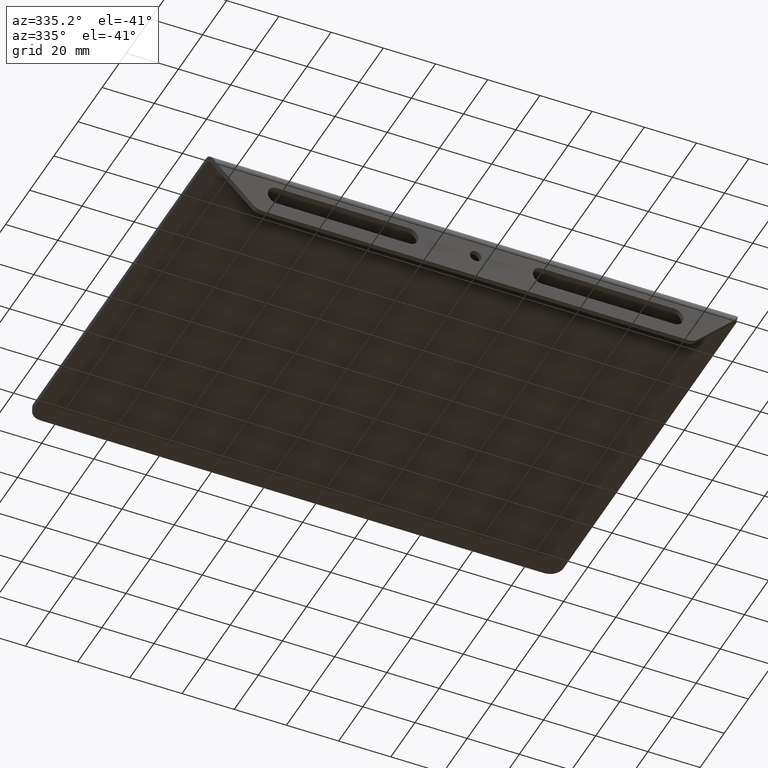
[diagram: clean part render]
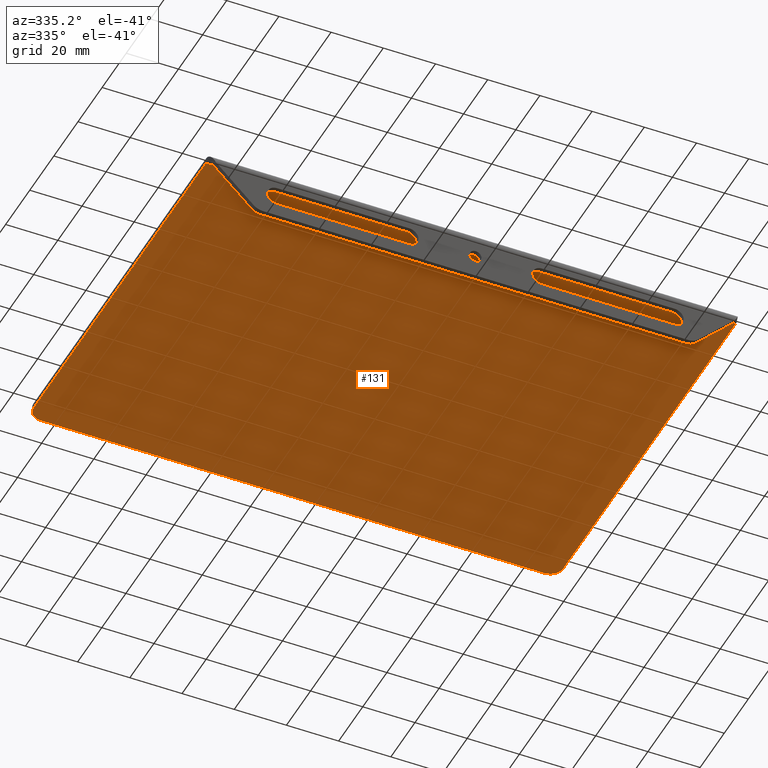
[diagram: same view with one face highlighted and labeled with its STEP entity id]
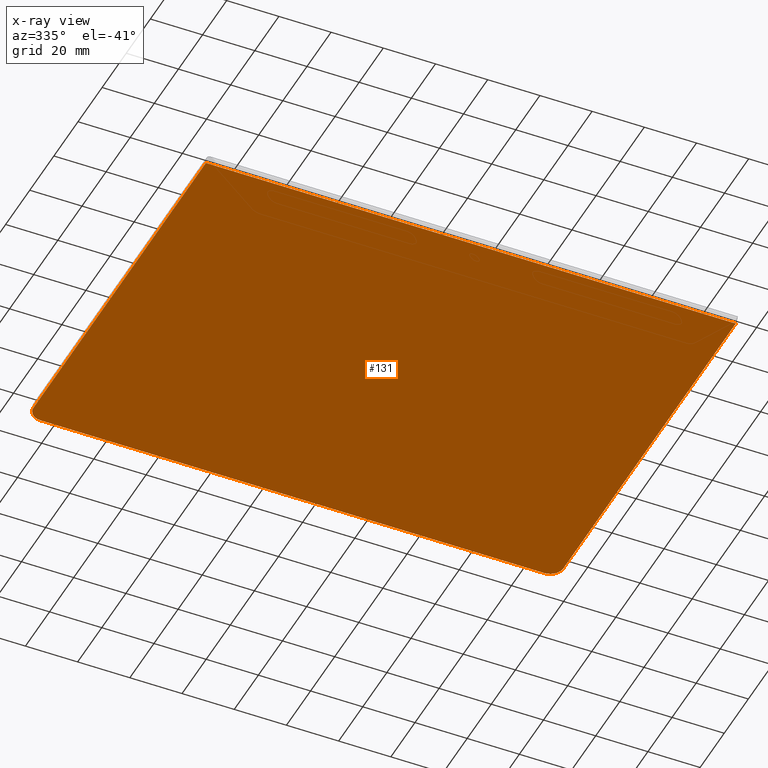
[diagram: x-ray of the same camera — body ghosted, the highlighted face saturated]
A machine part, auxiliary view. The second image highlights one B-rep face of the part: STEP entity #131.
The next image is the same camera in x-ray: the body ghosted, the highlighted face saturated — about 0% of this face is hidden behind the body in this view.
In plain terms, the highlighted planar face has unit normal (-0, 0, -1).
Its self-contained STEP definition (entity closure, byte-faithful):
#6 = ORIENTED_EDGE ( 'NONE', *, *, #55, .T. ) ;
#23 = CARTESIAN_POINT ( 'NONE',  ( 0.09999999999997054301, 146.9999999999999432, -1.999999999999998224 ) ) ;
#42 = FACE_OUTER_BOUND ( 'NONE', #454, .T. ) ;
#55 = EDGE_CURVE ( 'NONE', #589, #638, #824, .T. ) ;
#63 = VERTEX_POINT ( 'NONE', #474 ) ;
#64 = DIRECTION ( 'NONE',  ( -1.225259087783363897E-16, 1.000000000000000000, 0.000000000000000000 ) ) ;
#110 = CARTESIAN_POINT ( 'NONE',  ( 203.0999999999999943, 3.999999999999997335, -2.000000000000000000 ) ) ;
#115 = CARTESIAN_POINT ( 'NONE',  ( 5.100000000000005862, 151.9999999999999716, -1.999999999999998224 ) ) ;
#131 = ADVANCED_FACE ( 'NONE', ( #42 ), #276, .T. ) ;
#147 = CARTESIAN_POINT ( 'NONE',  ( 198.0999999999999943, 147.0000000000000000, -1.999999999999998224 ) ) ;
#167 = ORIENTED_EDGE ( 'NONE', *, *, #793, .T. ) ;
#196 = AXIS2_PLACEMENT_3D ( 'NONE', #977, #892, #339 ) ;
#242 = ORIENTED_EDGE ( 'NONE', *, *, #871, .T. ) ;
#276 = PLANE ( 'NONE',  #196 ) ;
#277 = EDGE_CURVE ( 'NONE', #890, #589, #373, .T. ) ;
#290 = DIRECTION ( 'NONE',  ( -1.000000000000000000, -0.000000000000000000, -0.000000000000000000 ) ) ;
#307 = EDGE_CURVE ( 'NONE', #572, #63, #619, .T. ) ;
#308 = CARTESIAN_POINT ( 'NONE',  ( 5.099999999999970335, 146.9999999999999716, -1.999999999999998224 ) ) ;
#311 = ORIENTED_EDGE ( 'NONE', *, *, #307, .T. ) ;
#339 = DIRECTION ( 'NONE',  ( -1.000000000000000000, 0.000000000000000000, 0.000000000000000000 ) ) ;
#364 = CARTESIAN_POINT ( 'NONE',  ( 5.100000000000005862, 151.9999999999999716, -1.999999999999998224 ) ) ;
#373 = LINE ( 'NONE', #1001, #701 ) ;
#454 = EDGE_LOOP ( 'NONE', ( #167, #242, #795, #6, #782, #311 ) ) ;
#457 = LINE ( 'NONE', #988, #960 ) ;
#459 = DIRECTION ( 'NONE',  ( -1.000000000000000000, 0.000000000000000000, 0.000000000000000000 ) ) ;
#474 = CARTESIAN_POINT ( 'NONE',  ( 203.0999999999999943, 146.9999999999999716, -1.999999999999998224 ) ) ;
#517 = AXIS2_PLACEMENT_3D ( 'NONE', #308, #632, #931 ) ;
#520 = DIRECTION ( 'NONE',  ( 1.000000000000000000, 1.438112726198389480E-16, 0.000000000000000000 ) ) ;
#544 = CARTESIAN_POINT ( 'NONE',  ( 203.1999999999999886, 3.999999999999997335, -2.000000000000000000 ) ) ;
#572 = VERTEX_POINT ( 'NONE', #900 ) ;
#589 = VERTEX_POINT ( 'NONE', #23 ) ;
#619 = CIRCLE ( 'NONE', #972, 5.000000000000004441 ) ;
#632 = DIRECTION ( 'NONE',  ( -0.000000000000000000, -0.000000000000000000, -1.000000000000000000 ) ) ;
#638 = VERTEX_POINT ( 'NONE', #115 ) ;
#697 = VERTEX_POINT ( 'NONE', #110 ) ;
#701 = VECTOR ( 'NONE', #64, 1000.000000000000000 ) ;
#749 = VECTOR ( 'NONE', #520, 1000.000000000000000 ) ;
#782 = ORIENTED_EDGE ( 'NONE', *, *, #885, .T. ) ;
#793 = EDGE_CURVE ( 'NONE', #63, #697, #457, .T. ) ;
#795 = ORIENTED_EDGE ( 'NONE', *, *, #277, .T. ) ;
#824 = CIRCLE ( 'NONE', #517, 5.000000000000001776 ) ;
#831 = CARTESIAN_POINT ( 'NONE',  ( 0.09999999999998898659, 3.999999999999997335, -2.000000000000000000 ) ) ;
#871 = EDGE_CURVE ( 'NONE', #697, #890, #923, .T. ) ;
#877 = VECTOR ( 'NONE', #290, 1000.000000000000000 ) ;
#885 = EDGE_CURVE ( 'NONE', #638, #572, #993, .T. ) ;
#890 = VERTEX_POINT ( 'NONE', #831 ) ;
#892 = DIRECTION ( 'NONE',  ( -0.000000000000000000, 0.000000000000000000, -1.000000000000000000 ) ) ;
#900 = CARTESIAN_POINT ( 'NONE',  ( 198.0999999999999659, 152.0000000000000000, -1.999999999999998224 ) ) ;
#904 = DIRECTION ( 'NONE',  ( 0.000000000000000000, -1.000000000000000000, 0.000000000000000000 ) ) ;
#918 = DIRECTION ( 'NONE',  ( -0.000000000000000000, -0.000000000000000000, -1.000000000000000000 ) ) ;
#923 = LINE ( 'NONE', #544, #877 ) ;
#931 = DIRECTION ( 'NONE',  ( -1.000000000000000000, 0.000000000000000000, 0.000000000000000000 ) ) ;
#960 = VECTOR ( 'NONE', #904, 1000.000000000000000 ) ;
#972 = AXIS2_PLACEMENT_3D ( 'NONE', #147, #918, #459 ) ;
#977 = CARTESIAN_POINT ( 'NONE',  ( 203.1999999999999886, 0.000000000000000000, -2.000000000000000000 ) ) ;
#988 = CARTESIAN_POINT ( 'NONE',  ( 203.0999999999999943, 146.9999999999999716, -1.999999999999998224 ) ) ;
#993 = LINE ( 'NONE', #364, #749 ) ;
#1001 = CARTESIAN_POINT ( 'NONE',  ( 0.09999999999997054301, 146.9999999999999432, -1.999999999999998224 ) ) ;